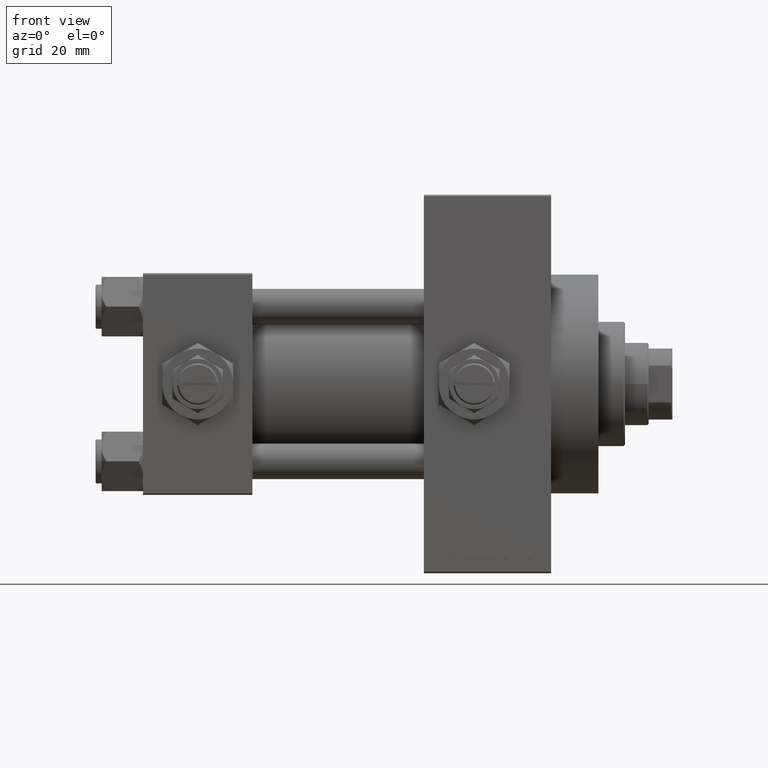
[diagram: clean part render]
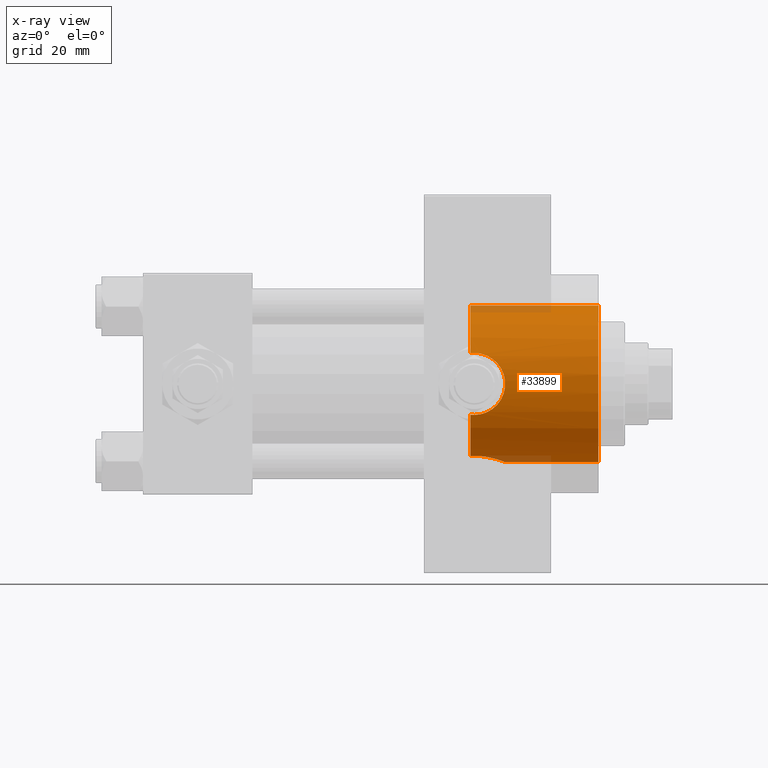
[diagram: x-ray — body ghosted, one internal face saturated and labeled with its STEP entity id]
A machine part, front view, then the same camera in x-ray: the body is ghosted and one INTERNAL B-rep face — a face not visible from any outside direction — is saturated and labeled: STEP entity #33899.
In plain terms, the highlighted cylindrical surface (partial cylindrical patch) has radius 26.5 mm, axis along (1, 0, 0).
Its self-contained STEP definition (entity closure, byte-faithful):
#9 = DIRECTION ( 'NONE',  ( 1.000000000000000000, -0.000000000000000000, -0.000000000000000000 ) ) ;
#267 = CIRCLE ( 'NONE', #5080, 26.50000000000000355 ) ;
#384 = CARTESIAN_POINT ( 'NONE',  ( 114.7286532048194516, -24.48994387988090082, 10.12445329003761252 ) ) ;
#1498 = DIRECTION ( 'NONE',  ( 0.000000000000000000, 0.000000000000000000, -1.000000000000000000 ) ) ;
#1732 = EDGE_CURVE ( 'NONE', #27047, #24202, #267, .T. ) ;
#2750 = CARTESIAN_POINT ( 'NONE',  ( 122.4800000000001603, 1.044554909417470286E-14, -26.50000000000006750 ) ) ;
#2983 = EDGE_CURVE ( 'NONE', #11358, #41201, #28349, .T. ) ;
#3003 = CARTESIAN_POINT ( 'NONE',  ( 115.8600678267363406, -9.750145953289912626, -24.64162310621549423 ) ) ;
#3144 = CARTESIAN_POINT ( 'NONE',  ( 121.5385175848662982, -26.14168889184968947, 4.354785931857526826 ) ) ;
#3385 = CARTESIAN_POINT ( 'NONE',  ( 117.5577538920436780, -24.96463143003449403, -8.891425016462852327 ) ) ;
#3493 = CARTESIAN_POINT ( 'NONE',  ( 111.4868983507928561, -10.49443499905853550, -24.33364968799255124 ) ) ;
#3550 = CARTESIAN_POINT ( 'NONE',  ( 112.0000000000000000, -24.33967132070604222, 10.48000000000000220 ) ) ;
#3645 = CARTESIAN_POINT ( 'NONE',  ( 121.0816778311290136, -25.97633853132261450, -5.273786452924785983 ) ) ;
#3889 = CARTESIAN_POINT ( 'NONE',  ( 120.3165002292777785, -25.71874665637611201, 6.413821170274212946 ) ) ;
#4132 = CARTESIAN_POINT ( 'NONE',  ( 118.9147507852791676, -25.30155050139244111, 7.882476147205595751 ) ) ;
#4399 = CARTESIAN_POINT ( 'NONE',  ( 112.0000000000000000, -24.33967132070604222, 10.48000000000000220 ) ) ;
#4652 = B_SPLINE_CURVE_WITH_KNOTS ( 'NONE', 3,
 ( #2750, #40394, #17947, #29657, #6747, #30155, #14462, #9988, #29158, #41141, #37143, #33145, #44875, #6258, #21953, #6995, #14212, #32893, #44641, #3003, #18443, #25683, #18195, #6502, #3493, #48616 ),
 .UNSPECIFIED., .F., .F.,
 ( 4, 2, 2, 2, 2, 2, 2, 2, 2, 2, 2, 2, 4 ),
 ( 0.01781170071191075926, 0.02003745927526345838, 0.02115033855693980447, 0.02226321783861615403, 0.02337609712029250011, 0.02448897640196884967, 0.02671473496532152103, 0.02782761424699785324, 0.02894049352867418545, 0.03005337281035051766, 0.03116625209202684987, 0.03339201065537952123, 0.03561776921873219259 ),
 .UNSPECIFIED. ) ;
#4782 = CARTESIAN_POINT ( 'NONE',  ( 111.5811236364006049, -24.33967132070604222, -10.47999999999999865 ) ) ;
#5080 = AXIS2_PLACEMENT_3D ( 'NONE', #24438, #35632, #1498 ) ;
#5138 = CARTESIAN_POINT ( 'NONE',  ( 110.7400000000000375, -24.37226292324945476, 10.40398000767014786 ) ) ;
#5153 = AXIS2_PLACEMENT_3D ( 'NONE', #44261, #13837, #17323 ) ;
#5267 = CARTESIAN_POINT ( 'NONE',  ( 110.7400000000000375, -24.37226292324945831, -10.40398000767014430 ) ) ;
#6258 = CARTESIAN_POINT ( 'NONE',  ( 118.6874981071936759, -8.077221093107549876, -25.24030799844107520 ) ) ;
#6379 = CARTESIAN_POINT ( 'NONE',  ( 110.7400000000000375, -10.40398000767013365, -24.37226292324945831 ) ) ;
#6486 = EDGE_CURVE ( 'NONE', #46407, #24202, #4652, .T. ) ;
#6502 = CARTESIAN_POINT ( 'NONE',  ( 112.2451057705678039, -10.50334255171939368, -24.32972513250579993 ) ) ;
#6747 = CARTESIAN_POINT ( 'NONE',  ( 122.0665133812162537, -2.938253791439165319, -26.33899517628733733 ) ) ;
#6884 = CARTESIAN_POINT ( 'NONE',  ( 120.5155153844950462, -25.78569419426082021, -6.118106053452859960 ) ) ;
#6957 = ORIENTED_EDGE ( 'NONE', *, *, #28510, .T. ) ;
#6995 = CARTESIAN_POINT ( 'NONE',  ( 117.8022832347253370, -8.734885810676978224, -25.02004257437574708 ) ) ;
#7136 = CARTESIAN_POINT ( 'NONE',  ( 120.3132647636415271, -25.71940794313460898, -6.390292897823913520 ) ) ;
#7381 = CARTESIAN_POINT ( 'NONE',  ( 122.3935590552673744, -26.46591511510092687, -1.387412420731371165 ) ) ;
#7631 = CARTESIAN_POINT ( 'NONE',  ( 118.3864792908362773, -25.16230905708522414, 8.316254619809553716 ) ) ;
#7870 = CARTESIAN_POINT ( 'NONE',  ( 112.0000000000000000, -24.33967132070604222, 10.48000000000000220 ) ) ;
#9238 = CARTESIAN_POINT ( 'NONE',  ( 154.0000000000000284, 3.245314017740486554E-15, 26.50000000000000355 ) ) ;
#9905 = CIRCLE ( 'NONE', #5153, 26.50000000000000355 ) ;
#9988 = CARTESIAN_POINT ( 'NONE',  ( 121.3963988635402984, -4.655434592126339588, -26.09007526830299639 ) ) ;
#10610 = CARTESIAN_POINT ( 'NONE',  ( 122.4626037639855838, -26.49310609510639836, -0.6963515910539334053 ) ) ;
#10697 = B_SPLINE_CURVE_WITH_KNOTS ( 'NONE', 3,
 ( #10868, #48997, #49246, #45015, #41532, #15105, #30782, #22578, #3385, #30535, #30046, #18835, #11604, #7136, #6884, #3645, #15590, #34026, #33532, #14596, #7381, #10610, #26557, #37281, #19087, #37777, #22089, #38267, #25822, #3144, #45259, #48749, #26069, #3889, #18341, #29792, #4132, #7631, #19325, #34511, #11359, #22342, #11118, #384, #26320, #30294, #45509, #7870 ),
 .UNSPECIFIED., .F., .F.,
 ( 4, 2, 2, 2, 2, 2, 2, 2, 2, 2, 2, 2, 2, 2, 2, 2, 2, 2, 2, 2, 2, 2, 2, 4 ),
 ( 0.001255586767787659347, 0.003325356817179700875, 0.005395126866571742404, 0.006430011891267743869, 0.007464896915963744467, 0.009534666965355782092, 0.01056955199005181305, 0.01160443701474784574, 0.01367420706413988857, 0.01574397711353192966, 0.01677886213822795194, 0.01781374716292397076, 0.01988351721231601532, 0.02091840223701203413, 0.02195328726170805295, 0.02298817228640406482, 0.02402305731110008363, 0.02609282736049212126, 0.02712771238518812619, 0.02816259740988413460, 0.03023236745927610630, 0.03126725248397210777, 0.03230213750866811617, 0.03437190755806011910 ),
 .UNSPECIFIED. ) ;
#10868 = CARTESIAN_POINT ( 'NONE',  ( 112.0000000000000000, -24.33967132070604222, -10.47999999999999865 ) ) ;
#11118 = CARTESIAN_POINT ( 'NONE',  ( 115.3904700717597649, -24.57248644795726022, 9.922439993611771314 ) ) ;
#11358 = VERTEX_POINT ( 'NONE', #22493 ) ;
#11359 = CARTESIAN_POINT ( 'NONE',  ( 116.6659000583122605, -24.77500862834706652, 9.408993987884901600 ) ) ;
#11604 = CARTESIAN_POINT ( 'NONE',  ( 119.8811664359166400, -25.58300917221409421, -6.916171625962136638 ) ) ;
#12979 = CARTESIAN_POINT ( 'NONE',  ( 111.1611364518797984, -24.35049096341792918, -10.45498279016081611 ) ) ;
#13837 = DIRECTION ( 'NONE',  ( 1.000000000000000000, 0.000000000000000000, 0.000000000000000000 ) ) ;
#14212 = CARTESIAN_POINT ( 'NONE',  ( 117.4947120380321479, -8.931495953537135435, -24.95025484238639635 ) ) ;
#14304 = B_SPLINE_CURVE_WITH_KNOTS ( 'NONE', 3,
 ( #5267, #12979, #4782, #15991 ),
 .UNSPECIFIED., .F., .F.,
 ( 4, 4 ),
 ( 0.000000000000000000, 0.001255586767787659347 ),
 .UNSPECIFIED. ) ;
#14462 = CARTESIAN_POINT ( 'NONE',  ( 121.6993435614955530, -3.985990130492286454, -26.20070574291653287 ) ) ;
#14596 = CARTESIAN_POINT ( 'NONE',  ( 122.3421836049517140, -26.44572692659851754, -1.728475508984260278 ) ) ;
#15105 = CARTESIAN_POINT ( 'NONE',  ( 116.3489237122697091, -24.72318467201152714, -9.541179571695423078 ) ) ;
#15429 = EDGE_LOOP ( 'NONE', ( #44888, #31480, #30628, #39891, #37448, #41864, #16739, #44358, #6957 ) ) ;
#15590 = CARTESIAN_POINT ( 'NONE',  ( 121.4057128516256370, -26.09263577897064224, -4.673612418766447618 ) ) ;
#15991 = CARTESIAN_POINT ( 'NONE',  ( 112.0000000000000000, -24.33967132070604222, -10.47999999999999865 ) ) ;
#16739 = ORIENTED_EDGE ( 'NONE', *, *, #30082, .T. ) ;
#16893 = CARTESIAN_POINT ( 'NONE',  ( 112.0000000000000000, -24.33967132070604222, -10.47999999999999865 ) ) ;
#16977 = CARTESIAN_POINT ( 'NONE',  ( 110.7400000000000375, -24.37226292324945476, 10.40398000767014786 ) ) ;
#17210 = CYLINDRICAL_SURFACE ( 'NONE', #46492, 26.50000000000000355 ) ;
#17323 = DIRECTION ( 'NONE',  ( 0.000000000000000000, 0.000000000000000000, -1.000000000000000000 ) ) ;
#17626 = LINE ( 'NONE', #48295, #48512 ) ;
#17947 = CARTESIAN_POINT ( 'NONE',  ( 122.4011065554137900, -1.483758503940586060, -26.46850309434598003 ) ) ;
#18195 = CARTESIAN_POINT ( 'NONE',  ( 113.7216423275559407, -10.36418010715235383, -24.38933169417625990 ) ) ;
#18341 = CARTESIAN_POINT ( 'NONE',  ( 119.8850942087585736, -25.58093385762820660, 6.936447548980011035 ) ) ;
#18443 = CARTESIAN_POINT ( 'NONE',  ( 115.5115735695664796, -9.881194972351249106, -24.58915736193083745 ) ) ;
#18835 = CARTESIAN_POINT ( 'NONE',  ( 119.6501220615578234, -25.51256335955728716, -7.170912732211446539 ) ) ;
#19087 = CARTESIAN_POINT ( 'NONE',  ( 122.4114040688938587, -26.47265107862981992, 1.382412405478188999 ) ) ;
#19325 = CARTESIAN_POINT ( 'NONE',  ( 118.1110651716822275, -25.09360970262138224, 8.520611273842996880 ) ) ;
#21575 = CARTESIAN_POINT ( 'NONE',  ( 110.7400000000000375, 0.000000000000000000, 0.000000000000000000 ) ) ;
#21953 = CARTESIAN_POINT ( 'NONE',  ( 118.3983008714430696, -8.308216825530728045, -25.16494175890557017 ) ) ;
#22089 = CARTESIAN_POINT ( 'NONE',  ( 122.1219222710722505, -26.36027543327034905, 2.738055544399104146 ) ) ;
#22342 = CARTESIAN_POINT ( 'NONE',  ( 115.7173844672076370, -24.61993612039164248, 9.804529592362731805 ) ) ;
#22493 = CARTESIAN_POINT ( 'NONE',  ( 110.7400000000000375, 3.245314017740486554E-15, 26.50000000000000355 ) ) ;
#22578 = CARTESIAN_POINT ( 'NONE',  ( 117.2635990777562256, -24.90054338428140568, -9.068796382691635571 ) ) ;
#23590 = CARTESIAN_POINT ( 'NONE',  ( 111.1580741051582635, -24.35064928096444348, 10.45461191700782422 ) ) ;
#23911 = EDGE_CURVE ( 'NONE', #46407, #33654, #17626, .T. ) ;
#24202 = VERTEX_POINT ( 'NONE', #6379 ) ;
#24438 = CARTESIAN_POINT ( 'NONE',  ( 110.7400000000000375, 0.000000000000000000, 0.000000000000000000 ) ) ;
#25683 = CARTESIAN_POINT ( 'NONE',  ( 114.4459359432478038, -10.21777125531387753, -24.45211332338677579 ) ) ;
#25822 = CARTESIAN_POINT ( 'NONE',  ( 121.8022638174866046, -26.23907308479208922, 3.723318718764354163 ) ) ;
#26069 = CARTESIAN_POINT ( 'NONE',  ( 120.8904987776702171, -25.91192981801191664, 5.559420023815757617 ) ) ;
#26273 = B_SPLINE_CURVE_WITH_KNOTS ( 'NONE', 3,
 ( #4399, #46504, #23590, #5138 ),
 .UNSPECIFIED., .F., .F.,
 ( 4, 4 ),
 ( 0.03437190755806011910, 0.03561776921873218565 ),
 .UNSPECIFIED. ) ;
#26320 = CARTESIAN_POINT ( 'NONE',  ( 114.3947302122627718, -24.45488967133337965, 10.20851256290626985 ) ) ;
#26557 = CARTESIAN_POINT ( 'NONE',  ( 122.4800680225664280, -26.50002690099941205, -0.3451042088078361547 ) ) ;
#27047 = VERTEX_POINT ( 'NONE', #44100 ) ;
#28349 = LINE ( 'NONE', #36310, #48088 ) ;
#28510 = EDGE_CURVE ( 'NONE', #31457, #28654, #26273, .T. ) ;
#28654 = VERTEX_POINT ( 'NONE', #16977 ) ;
#29029 = DIRECTION ( 'NONE',  ( 0.000000000000000000, 0.000000000000000000, -1.000000000000000000 ) ) ;
#29158 = CARTESIAN_POINT ( 'NONE',  ( 121.2276638786152176, -4.981583166679953045, -26.02957788900646463 ) ) ;
#29657 = CARTESIAN_POINT ( 'NONE',  ( 122.1654842721633969, -2.575241489874368295, -26.37710048711162614 ) ) ;
#29792 = CARTESIAN_POINT ( 'NONE',  ( 119.1663633815065140, -25.37171319999174912, 7.654298772871992895 ) ) ;
#30046 = CARTESIAN_POINT ( 'NONE',  ( 118.9276451403627135, -25.30216499957183984, -7.893159106980520257 ) ) ;
#30082 = EDGE_CURVE ( 'NONE', #27047, #45676, #14304, .T. ) ;
#30155 = CARTESIAN_POINT ( 'NONE',  ( 121.8335546017134305, -3.642695553053290958, -26.25084325021122567 ) ) ;
#30231 = CARTESIAN_POINT ( 'NONE',  ( 154.0000000000000284, 0.000000000000000000, -26.50000000000000355 ) ) ;
#30294 = CARTESIAN_POINT ( 'NONE',  ( 113.3839948142214524, -24.36973996242157625, 10.41091756284553504 ) ) ;
#30535 = CARTESIAN_POINT ( 'NONE',  ( 118.4049404352972061, -25.16229795609818964, -8.322848467437539810 ) ) ;
#30628 = ORIENTED_EDGE ( 'NONE', *, *, #35090, .T. ) ;
#30782 = CARTESIAN_POINT ( 'NONE',  ( 116.6580558779861150, -24.77960996754317335, -9.394203453174529983 ) ) ;
#31457 = VERTEX_POINT ( 'NONE', #3550 ) ;
#31480 = ORIENTED_EDGE ( 'NONE', *, *, #2983, .T. ) ;
#31637 = CIRCLE ( 'NONE', #43602, 26.50000000000000355 ) ;
#32893 = CARTESIAN_POINT ( 'NONE',  ( 116.8603660912149991, -9.291949300782539112, -24.81826977973611292 ) ) ;
#33145 = CARTESIAN_POINT ( 'NONE',  ( 119.9981355541606973, -6.811571481472474154, -25.61680511670815363 ) ) ;
#33532 = CARTESIAN_POINT ( 'NONE',  ( 122.1391112229688076, -26.36675217432884466, -2.738755341944245192 ) ) ;
#33654 = VERTEX_POINT ( 'NONE', #30231 ) ;
#33899 = ADVANCED_FACE ( 'NONE', ( #36147 ), #17210, .F. ) ;
#34026 = CARTESIAN_POINT ( 'NONE',  ( 121.9389570606566053, -26.28956209411557765, -3.395175965175880606 ) ) ;
#34511 = CARTESIAN_POINT ( 'NONE',  ( 117.2636119660474066, -24.89625137302610369, 9.087734872939172703 ) ) ;
#35090 = EDGE_CURVE ( 'NONE', #41201, #33654, #9905, .T. ) ;
#35632 = DIRECTION ( 'NONE',  ( 1.000000000000000000, 0.000000000000000000, 0.000000000000000000 ) ) ;
#36147 = FACE_OUTER_BOUND ( 'NONE', #15429, .T. ) ;
#36310 = CARTESIAN_POINT ( 'NONE',  ( 110.7400000000000375, 3.245314017740486554E-15, 26.50000000000000355 ) ) ;
#37143 = CARTESIAN_POINT ( 'NONE',  ( 120.6508763872861323, -5.926808359427498729, -25.83050513016100069 ) ) ;
#37281 = CARTESIAN_POINT ( 'NONE',  ( 122.4798633477534509, -26.49994595790488106, 0.6963870350870486892 ) ) ;
#37448 = ORIENTED_EDGE ( 'NONE', *, *, #6486, .T. ) ;
#37777 = CARTESIAN_POINT ( 'NONE',  ( 122.2075249541714896, -26.39335609204158573, 2.399236127628239235 ) ) ;
#37893 = DIRECTION ( 'NONE',  ( 0.000000000000000000, 0.000000000000000000, -1.000000000000000000 ) ) ;
#38267 = CARTESIAN_POINT ( 'NONE',  ( 121.9191483855533704, -26.28308039691835418, 3.400110870430098853 ) ) ;
#39104 = CARTESIAN_POINT ( 'NONE',  ( 122.4800000000001603, 1.044554909417470286E-14, -26.50000000000006750 ) ) ;
#39891 = ORIENTED_EDGE ( 'NONE', *, *, #23911, .F. ) ;
#40394 = CARTESIAN_POINT ( 'NONE',  ( 122.4800000000000324, -0.7466733969459961040, -26.50000000000001421 ) ) ;
#41141 = CARTESIAN_POINT ( 'NONE',  ( 120.8553297434205689, -5.616857363200493225, -25.89992295911057951 ) ) ;
#41201 = VERTEX_POINT ( 'NONE', #9238 ) ;
#41400 = CARTESIAN_POINT ( 'NONE',  ( 110.7400000000000375, 0.000000000000000000, 0.000000000000000000 ) ) ;
#41532 = CARTESIAN_POINT ( 'NONE',  ( 115.4024368383431352, -24.56844862672225815, -9.935854460437969493 ) ) ;
#41826 = EDGE_CURVE ( 'NONE', #11358, #28654, #31637, .T. ) ;
#41864 = ORIENTED_EDGE ( 'NONE', *, *, #1732, .F. ) ;
#43574 = DIRECTION ( 'NONE',  ( 1.000000000000000000, -0.000000000000000000, -0.000000000000000000 ) ) ;
#43602 = AXIS2_PLACEMENT_3D ( 'NONE', #21575, #44508, #29029 ) ;
#44060 = DIRECTION ( 'NONE',  ( 1.000000000000000000, -0.000000000000000000, -0.000000000000000000 ) ) ;
#44100 = CARTESIAN_POINT ( 'NONE',  ( 110.7400000000000375, -24.37226292324945831, -10.40398000767014430 ) ) ;
#44261 = CARTESIAN_POINT ( 'NONE',  ( 154.0000000000000284, 0.000000000000000000, 0.000000000000000000 ) ) ;
#44358 = ORIENTED_EDGE ( 'NONE', *, *, #47574, .T. ) ;
#44508 = DIRECTION ( 'NONE',  ( 1.000000000000000000, 0.000000000000000000, 0.000000000000000000 ) ) ;
#44641 = CARTESIAN_POINT ( 'NONE',  ( 116.5335921408433535, -9.455792512420327256, -24.75606841526506940 ) ) ;
#44875 = CARTESIAN_POINT ( 'NONE',  ( 119.5076201536012235, -7.348534936426531772, -25.46581292754184389 ) ) ;
#44888 = ORIENTED_EDGE ( 'NONE', *, *, #41826, .F. ) ;
#45015 = CARTESIAN_POINT ( 'NONE',  ( 114.7461877943153752, -24.48462605612510856, -10.13781324604279099 ) ) ;
#45259 = CARTESIAN_POINT ( 'NONE',  ( 121.3916535229813576, -26.08830885934473542, 4.663043711798784408 ) ) ;
#45509 = CARTESIAN_POINT ( 'NONE',  ( 112.6982936874238703, -24.33967132070603867, 10.47999999999999865 ) ) ;
#45676 = VERTEX_POINT ( 'NONE', #16893 ) ;
#46407 = VERTEX_POINT ( 'NONE', #39104 ) ;
#46492 = AXIS2_PLACEMENT_3D ( 'NONE', #41400, #9, #37893 ) ;
#46504 = CARTESIAN_POINT ( 'NONE',  ( 111.5796744023297293, -24.33967132070604222, 10.48000000000000220 ) ) ;
#47574 = EDGE_CURVE ( 'NONE', #45676, #31457, #10697, .T. ) ;
#48088 = VECTOR ( 'NONE', #43574, 1000.000000000000000 ) ;
#48295 = CARTESIAN_POINT ( 'NONE',  ( 110.7400000000000375, 0.000000000000000000, -26.50000000000000355 ) ) ;
#48512 = VECTOR ( 'NONE', #44060, 1000.000000000000000 ) ;
#48616 = CARTESIAN_POINT ( 'NONE',  ( 110.7400000000000375, -10.40398000767013365, -24.37226292324945831 ) ) ;
#48749 = CARTESIAN_POINT ( 'NONE',  ( 121.0679913760332198, -25.97354752128884314, 5.264851845784580320 ) ) ;
#48997 = CARTESIAN_POINT ( 'NONE',  ( 112.6904960883777846, -24.33967132070604222, -10.48000000000000043 ) ) ;
#49246 = CARTESIAN_POINT ( 'NONE',  ( 113.3786097457406044, -24.36915941385104745, -10.41231194222669387 ) ) ;